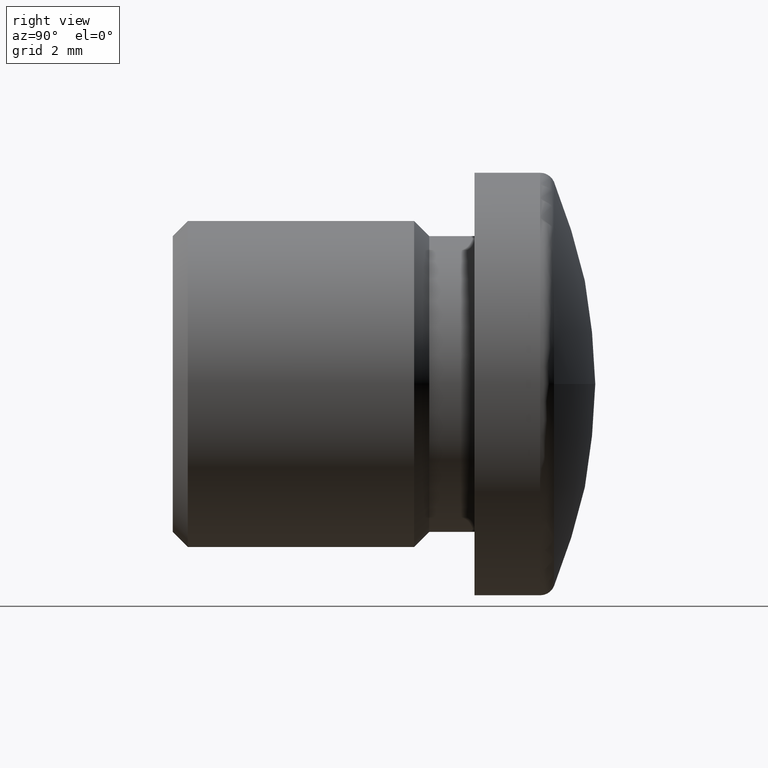
[diagram: clean part render]
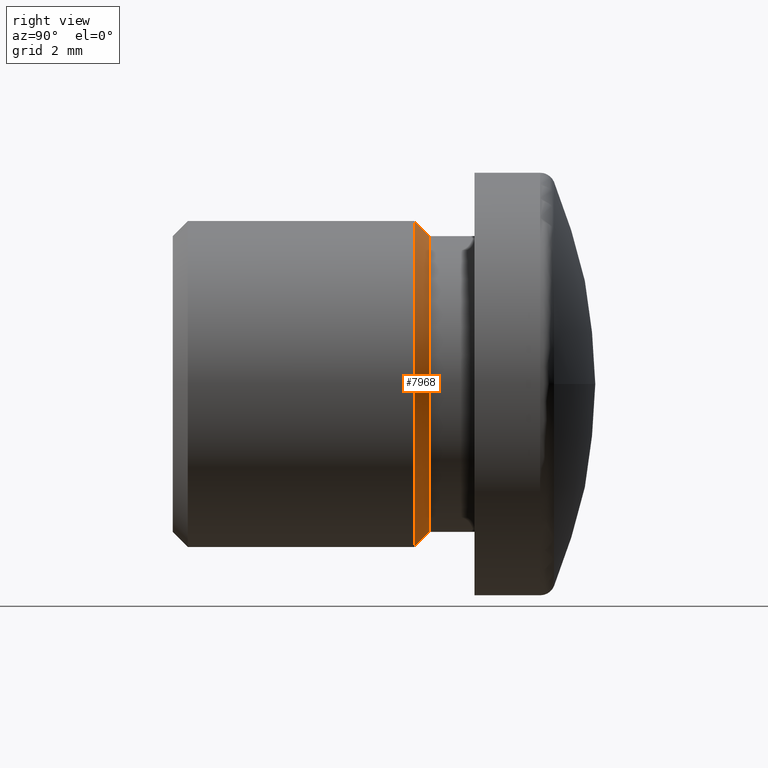
[diagram: same view with one face highlighted and labeled with its STEP entity id]
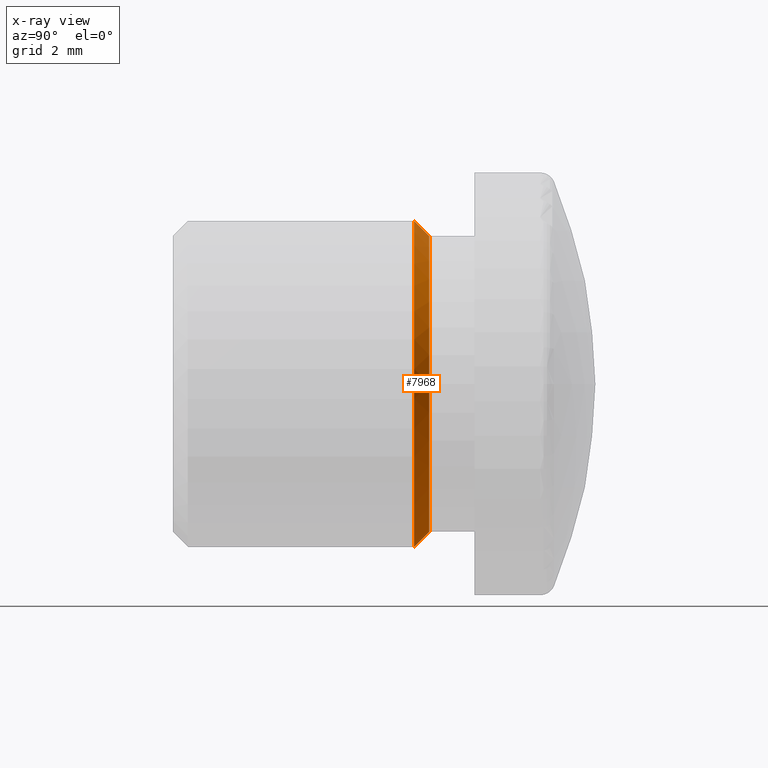
[diagram: x-ray of the same camera — body ghosted, the highlighted face saturated]
A machine part, right view. The second image highlights one B-rep face of the part: STEP entity #7968.
The next image is the same camera in x-ray: the body ghosted, the highlighted face saturated — about 0% of this face is hidden behind the body in this view.
In plain terms, the highlighted conical surface has half-angle 45 deg.
Its self-contained STEP definition (entity closure, byte-faithful):
#119 = CARTESIAN_POINT ( 'NONE',  ( 0.0000000000000000000, 8.499999999999998200, 0.0000000000000000000 ) ) ;
#328 = CARTESIAN_POINT ( 'NONE',  ( 0.0000000000000000000, 8.000000000000000000, -5.400000000000003900 ) ) ;
#637 = ORIENTED_EDGE ( 'NONE', *, *, #13072, .F. ) ;
#766 = VECTOR ( 'NONE', #4750, 1000.000000000000000 ) ;
#782 = VERTEX_POINT ( 'NONE', #941 ) ;
#941 = CARTESIAN_POINT ( 'NONE',  ( 0.0000000000000000000, 8.499999999999998200, -4.899999999999999500 ) ) ;
#1824 = VERTEX_POINT ( 'NONE', #8151 ) ;
#2130 = CONICAL_SURFACE ( 'NONE', #6247, 5.400000000000003900, 0.7853981633974533900 ) ;
#3438 = DIRECTION ( 'NONE',  ( 0.0000000000000000000, 0.0000000000000000000, -1.000000000000000000 ) ) ;
#3576 = FACE_OUTER_BOUND ( 'NONE', #4164, .T. ) ;
#3589 = CIRCLE ( 'NONE', #13227, 5.400000000000001200 ) ;
#3638 = DIRECTION ( 'NONE',  ( 0.0000000000000000000, 1.000000000000000000, 0.0000000000000000000 ) ) ;
#4164 = EDGE_LOOP ( 'NONE', ( #12974, #11788, #637, #12617 ) ) ;
#4286 = VERTEX_POINT ( 'NONE', #7435 ) ;
#4557 = DIRECTION ( 'NONE',  ( -0.0000000000000000000, -1.000000000000000000, -0.0000000000000000000 ) ) ;
#4750 = DIRECTION ( 'NONE',  ( 8.659560562354978500E-017, -0.7071067811865439100, 0.7071067811865512400 ) ) ;
#4811 = DIRECTION ( 'NONE',  ( 0.0000000000000000000, 0.0000000000000000000, -1.000000000000000000 ) ) ;
#5647 = DIRECTION ( 'NONE',  ( 0.0000000000000000000, 0.0000000000000000000, -1.000000000000000000 ) ) ;
#6247 = AXIS2_PLACEMENT_3D ( 'NONE', #7996, #4557, #3438 ) ;
#6733 = CARTESIAN_POINT ( 'NONE',  ( 0.0000000000000000000, 8.000000000000000000, 0.0000000000000000000 ) ) ;
#6752 = CARTESIAN_POINT ( 'NONE',  ( 0.0000000000000000000, 8.000000000000000000, -5.400000000000001200 ) ) ;
#7435 = CARTESIAN_POINT ( 'NONE',  ( 6.613092715395709400E-016, 8.000000000000000000, 5.400000000000001200 ) ) ;
#7968 = ADVANCED_FACE ( 'NONE', ( #3576 ), #2130, .T. ) ;
#7996 = CARTESIAN_POINT ( 'NONE',  ( 0.0000000000000000000, 8.000000000000000000, 0.0000000000000000000 ) ) ;
#8151 = CARTESIAN_POINT ( 'NONE',  ( 6.000769315822030700E-016, 8.499999999999998200, 4.899999999999999500 ) ) ;
#8216 = LINE ( 'NONE', #9256, #766 ) ;
#8256 = DIRECTION ( 'NONE',  ( 0.0000000000000000000, -0.7071067811865439100, -0.7071067811865512400 ) ) ;
#8831 = LINE ( 'NONE', #328, #12899 ) ;
#9094 = EDGE_CURVE ( 'NONE', #1824, #782, #11147, .T. ) ;
#9256 = CARTESIAN_POINT ( 'NONE',  ( 6.613092715395712400E-016, 8.000000000000000000, 5.400000000000003900 ) ) ;
#9732 = VERTEX_POINT ( 'NONE', #6752 ) ;
#9849 = EDGE_CURVE ( 'NONE', #782, #9732, #8831, .T. ) ;
#11147 = CIRCLE ( 'NONE', #14440, 4.899999999999999500 ) ;
#11508 = EDGE_CURVE ( 'NONE', #1824, #4286, #8216, .T. ) ;
#11788 = ORIENTED_EDGE ( 'NONE', *, *, #11508, .T. ) ;
#12400 = DIRECTION ( 'NONE',  ( -0.0000000000000000000, -1.000000000000000000, -0.0000000000000000000 ) ) ;
#12617 = ORIENTED_EDGE ( 'NONE', *, *, #9849, .F. ) ;
#12899 = VECTOR ( 'NONE', #8256, 1000.000000000000000 ) ;
#12974 = ORIENTED_EDGE ( 'NONE', *, *, #9094, .F. ) ;
#13072 = EDGE_CURVE ( 'NONE', #9732, #4286, #3589, .T. ) ;
#13227 = AXIS2_PLACEMENT_3D ( 'NONE', #6733, #12400, #5647 ) ;
#14440 = AXIS2_PLACEMENT_3D ( 'NONE', #119, #3638, #4811 ) ;